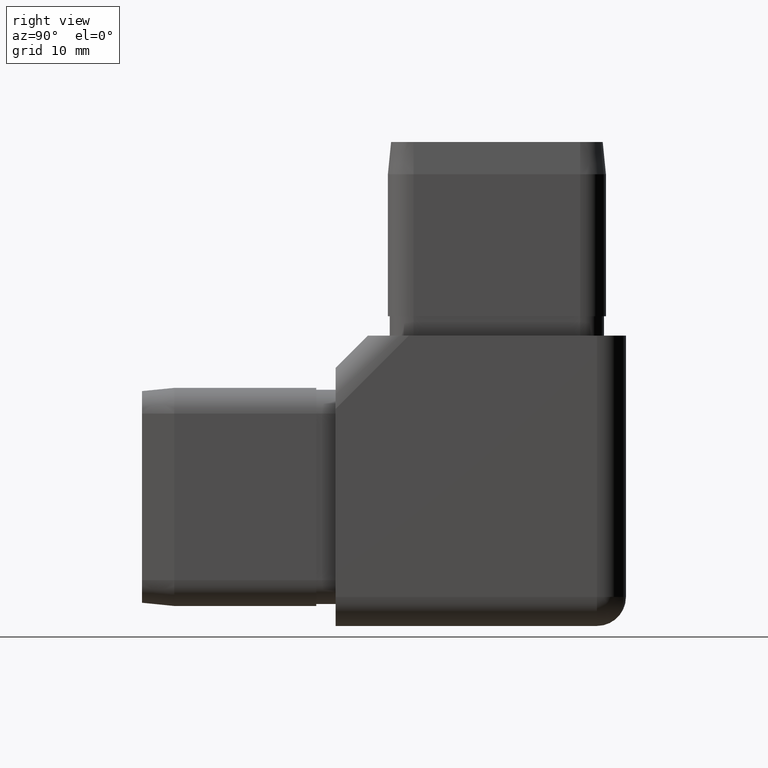
[diagram: clean part render]
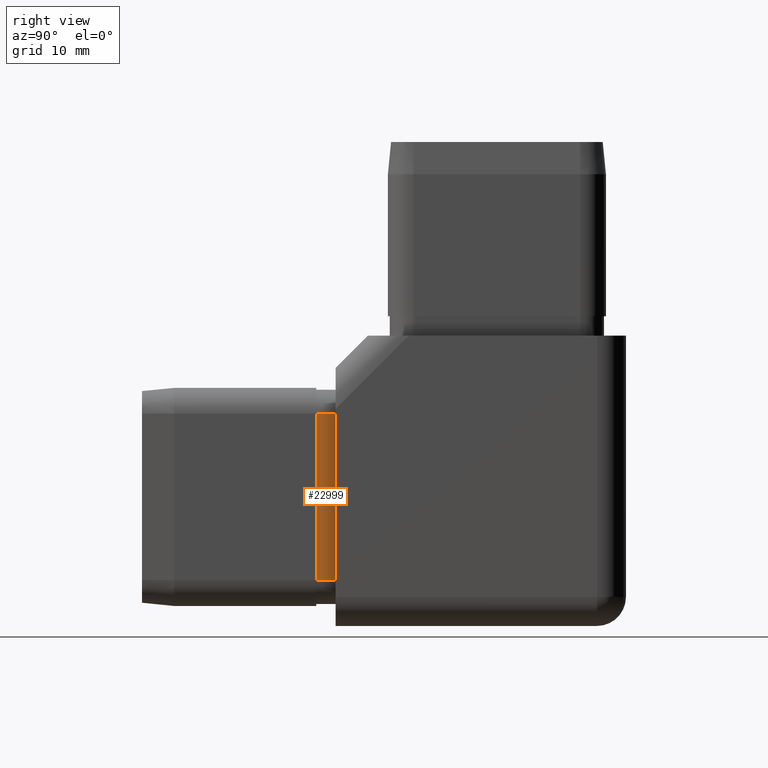
[diagram: same view with one face highlighted and labeled with its STEP entity id]
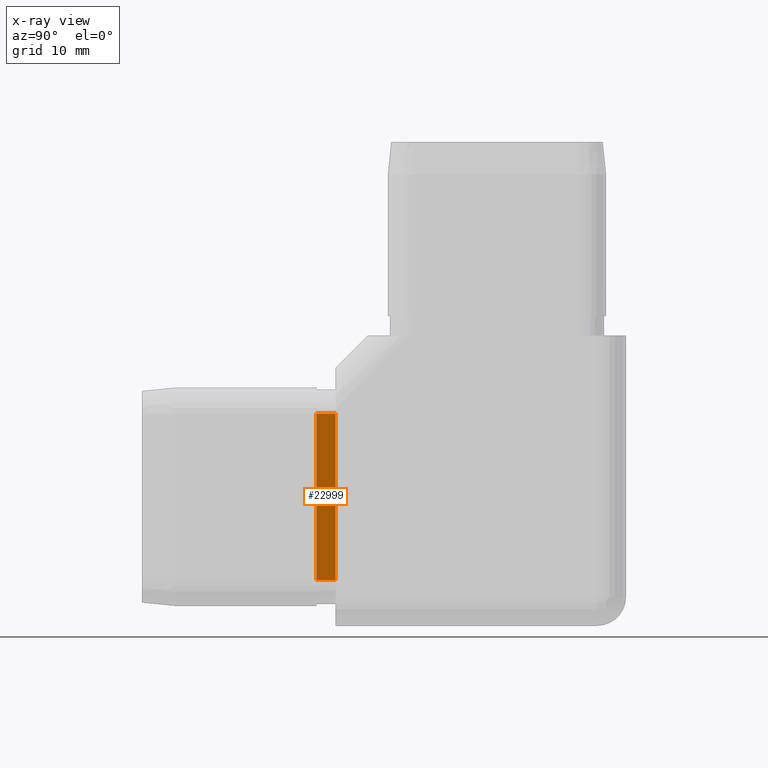
[diagram: x-ray of the same camera — body ghosted, the highlighted face saturated]
A machine part, right view. The second image highlights one B-rep face of the part: STEP entity #22999.
The next image is the same camera in x-ray: the body ghosted, the highlighted face saturated — about 0% of this face is hidden behind the body in this view.
In plain terms, the highlighted planar face has unit normal (1, 0, -0).
Its self-contained STEP definition (entity closure, byte-faithful):
#1611 = DIRECTION ( 'NONE',  ( 0.0000000000000000000, 1.000000000000000000, 4.440892098500625200E-016 ) ) ;
#1734 = EDGE_LOOP ( 'NONE', ( #4989, #21475, #24866, #2985 ) ) ;
#1776 = DIRECTION ( 'NONE',  ( 0.0000000000000000000, -2.689493761204352400E-016, 1.000000000000000000 ) ) ;
#2696 = DIRECTION ( 'NONE',  ( 0.0000000000000000000, 1.000000000000000000, 4.440892098500625200E-016 ) ) ;
#2807 = DIRECTION ( 'NONE',  ( 1.000000000000000000, 0.0000000000000000000, -0.0000000000000000000 ) ) ;
#2985 = ORIENTED_EDGE ( 'NONE', *, *, #20818, .F. ) ;
#4989 = ORIENTED_EDGE ( 'NONE', *, *, #7327, .T. ) ;
#5693 = VECTOR ( 'NONE', #1776, 1000.000000000000000 ) ;
#6176 = CARTESIAN_POINT ( 'NONE',  ( 16.60000000000001200, -25.49999999999999600, -15.40000000000001500 ) ) ;
#6524 = CARTESIAN_POINT ( 'NONE',  ( 16.60000000000001200, -22.49999999999999600, -15.40000000000001300 ) ) ;
#7327 = EDGE_CURVE ( 'NONE', #21148, #23483, #21509, .T. ) ;
#7427 = EDGE_CURVE ( 'NONE', #14497, #8096, #21841, .T. ) ;
#8096 = VERTEX_POINT ( 'NONE', #9017 ) ;
#8607 = CARTESIAN_POINT ( 'NONE',  ( 16.60000000000001200, -25.50000000000000400, 10.39999999999998600 ) ) ;
#9017 = CARTESIAN_POINT ( 'NONE',  ( 16.60000000000001200, -22.50000000000000400, 10.39999999999998800 ) ) ;
#9941 = LINE ( 'NONE', #6176, #5693 ) ;
#11272 = EDGE_CURVE ( 'NONE', #23483, #8096, #13846, .T. ) ;
#12439 = FACE_OUTER_BOUND ( 'NONE', #1734, .T. ) ;
#12837 = PLANE ( 'NONE',  #18680 ) ;
#13846 = LINE ( 'NONE', #6524, #18032 ) ;
#14117 = VECTOR ( 'NONE', #2696, 1000.000000000000000 ) ;
#14497 = VERTEX_POINT ( 'NONE', #8607 ) ;
#15147 = CARTESIAN_POINT ( 'NONE',  ( 16.60000000000001200, -25.49999999999999600, -15.40000000000001500 ) ) ;
#15397 = VECTOR ( 'NONE', #1611, 1000.000000000000000 ) ;
#15874 = CARTESIAN_POINT ( 'NONE',  ( 16.60000000000001200, -25.50000000000000400, 10.39999999999998600 ) ) ;
#18032 = VECTOR ( 'NONE', #18809, 1000.000000000000000 ) ;
#18680 = AXIS2_PLACEMENT_3D ( 'NONE', #23359, #2807, #23093 ) ;
#18809 = DIRECTION ( 'NONE',  ( 0.0000000000000000000, -2.689493761204352400E-016, 1.000000000000000000 ) ) ;
#19273 = CARTESIAN_POINT ( 'NONE',  ( 16.60000000000001200, -25.49999999999999600, -15.40000000000001500 ) ) ;
#20818 = EDGE_CURVE ( 'NONE', #21148, #14497, #9941, .T. ) ;
#20895 = CARTESIAN_POINT ( 'NONE',  ( 16.60000000000001200, -22.49999999999999600, -15.40000000000001300 ) ) ;
#21148 = VERTEX_POINT ( 'NONE', #19273 ) ;
#21475 = ORIENTED_EDGE ( 'NONE', *, *, #11272, .T. ) ;
#21509 = LINE ( 'NONE', #15147, #14117 ) ;
#21841 = LINE ( 'NONE', #15874, #15397 ) ;
#22999 = ADVANCED_FACE ( 'NONE', ( #12439 ), #12837, .T. ) ;
#23093 = DIRECTION ( 'NONE',  ( -0.0000000000000000000, 0.0000000000000000000, -1.000000000000000000 ) ) ;
#23359 = CARTESIAN_POINT ( 'NONE',  ( 16.60000000000001200, -25.49999999999999600, -15.40000000000001500 ) ) ;
#23483 = VERTEX_POINT ( 'NONE', #20895 ) ;
#24866 = ORIENTED_EDGE ( 'NONE', *, *, #7427, .F. ) ;